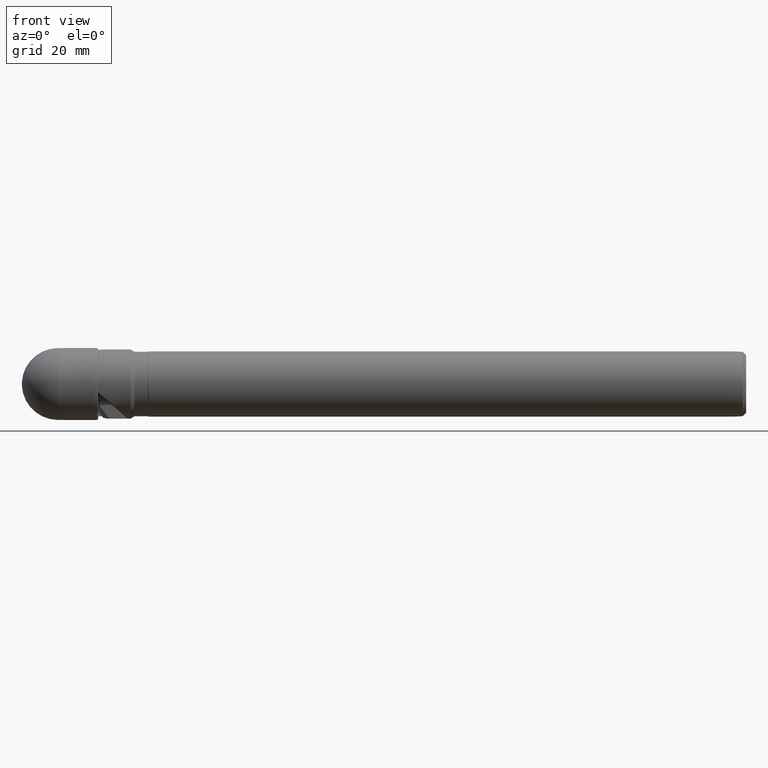
[diagram: clean part render]
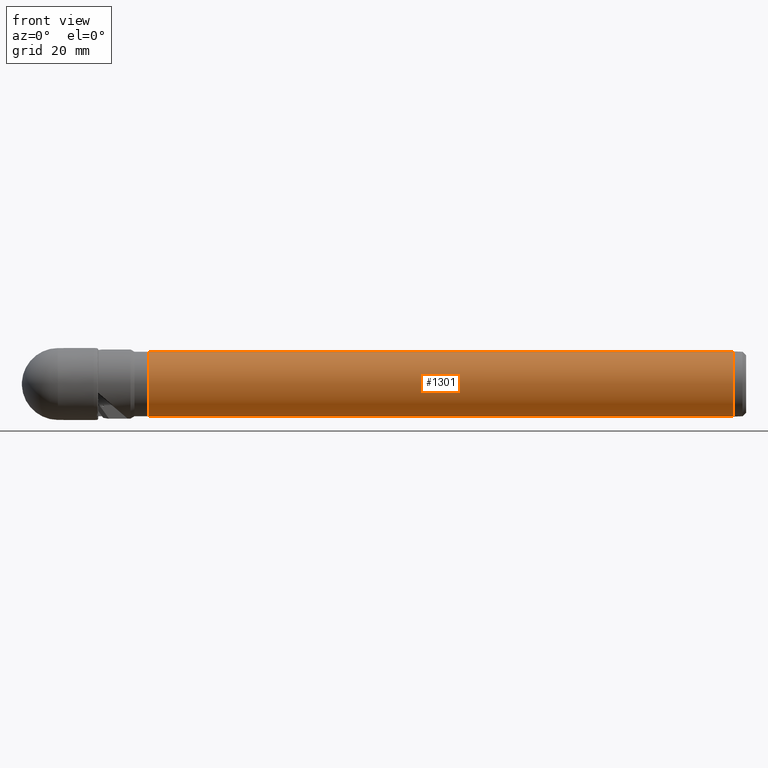
[diagram: same view with one face highlighted and labeled with its STEP entity id]
A machine part, front view. The second image highlights one B-rep face of the part: STEP entity #1301.
In plain terms, the highlighted cylindrical surface (edge-blend (fillet) strip) has radius 9 mm, axis along (-1, -0, -0).
Its self-contained STEP definition (entity closure, byte-faithful):
#105 = CARTESIAN_POINT ( 'NONE',  ( 196.5372464299999820, 0.0000000000000000000, 0.0000000000000000000 ) ) ;
#135 = VERTEX_POINT ( 'NONE', #1057 ) ;
#209 = AXIS2_PLACEMENT_3D ( 'NONE', #423, #2767, #1860 ) ;
#309 = VERTEX_POINT ( 'NONE', #1712 ) ;
#406 = EDGE_LOOP ( 'NONE', ( #3569, #961, #2839, #2235 ) ) ;
#423 = CARTESIAN_POINT ( 'NONE',  ( -4.762142644779060241, 0.0000000000000000000, 0.0000000000000000000 ) ) ;
#473 = FACE_OUTER_BOUND ( 'NONE', #406, .T. ) ;
#661 = EDGE_CURVE ( 'NONE', #135, #1982, #1340, .T. ) ;
#940 = CARTESIAN_POINT ( 'NONE',  ( 196.5372464299999820, 0.0000000000000000000, 9.000000000000000000 ) ) ;
#953 = CIRCLE ( 'NONE', #2401, 9.000000000000000000 ) ;
#961 = ORIENTED_EDGE ( 'NONE', *, *, #1896, .T. ) ;
#994 = VECTOR ( 'NONE', #3243, 1000.000000000000000 ) ;
#1057 = CARTESIAN_POINT ( 'NONE',  ( 35.03724642999997485, 1.102182119232615939E-15, -8.999999999999978684 ) ) ;
#1108 = LINE ( 'NONE', #1918, #1696 ) ;
#1132 = EDGE_CURVE ( 'NONE', #1166, #1982, #3298, .T. ) ;
#1166 = VERTEX_POINT ( 'NONE', #940 ) ;
#1247 = DIRECTION ( 'NONE',  ( 0.0000000000000000000, 0.0000000000000000000, 1.000000000000000000 ) ) ;
#1255 = CARTESIAN_POINT ( 'NONE',  ( -4.762142644779060241, 0.0000000000000000000, 8.999999999999989342 ) ) ;
#1301 = ADVANCED_FACE ( 'NONE', ( #473 ), #3629, .T. ) ;
#1340 = CIRCLE ( 'NONE', #1343, 8.999999999999978684 ) ;
#1343 = AXIS2_PLACEMENT_3D ( 'NONE', #1995, #2312, #2332 ) ;
#1696 = VECTOR ( 'NONE', #2246, 1000.000000000000000 ) ;
#1712 = CARTESIAN_POINT ( 'NONE',  ( 196.5372464299999820, 1.102182119232617714E-15, -9.000000000000000000 ) ) ;
#1788 = EDGE_CURVE ( 'NONE', #309, #135, #1108, .T. ) ;
#1860 = DIRECTION ( 'NONE',  ( 0.0000000000000000000, 0.0000000000000000000, 1.000000000000000000 ) ) ;
#1896 = EDGE_CURVE ( 'NONE', #309, #1166, #953, .T. ) ;
#1918 = CARTESIAN_POINT ( 'NONE',  ( -4.762142644779060241, 1.102182119232616531E-15, -8.999999999999989342 ) ) ;
#1982 = VERTEX_POINT ( 'NONE', #2153 ) ;
#1995 = CARTESIAN_POINT ( 'NONE',  ( 35.03724642999997485, 0.0000000000000000000, 0.0000000000000000000 ) ) ;
#2153 = CARTESIAN_POINT ( 'NONE',  ( 35.03724642999997485, 0.0000000000000000000, 8.999999999999978684 ) ) ;
#2235 = ORIENTED_EDGE ( 'NONE', *, *, #661, .F. ) ;
#2246 = DIRECTION ( 'NONE',  ( -1.000000000000000000, -0.0000000000000000000, -0.0000000000000000000 ) ) ;
#2312 = DIRECTION ( 'NONE',  ( -1.000000000000000000, -0.0000000000000000000, -0.0000000000000000000 ) ) ;
#2332 = DIRECTION ( 'NONE',  ( 0.0000000000000000000, 0.0000000000000000000, 1.000000000000000000 ) ) ;
#2385 = DIRECTION ( 'NONE',  ( -1.000000000000000000, -0.0000000000000000000, -0.0000000000000000000 ) ) ;
#2401 = AXIS2_PLACEMENT_3D ( 'NONE', #105, #2385, #1247 ) ;
#2767 = DIRECTION ( 'NONE',  ( -1.000000000000000000, -0.0000000000000000000, -0.0000000000000000000 ) ) ;
#2839 = ORIENTED_EDGE ( 'NONE', *, *, #1132, .T. ) ;
#3243 = DIRECTION ( 'NONE',  ( -1.000000000000000000, -0.0000000000000000000, -0.0000000000000000000 ) ) ;
#3298 = LINE ( 'NONE', #1255, #994 ) ;
#3569 = ORIENTED_EDGE ( 'NONE', *, *, #1788, .F. ) ;
#3629 = CYLINDRICAL_SURFACE ( 'NONE', #209, 8.999999999999989342 ) ;